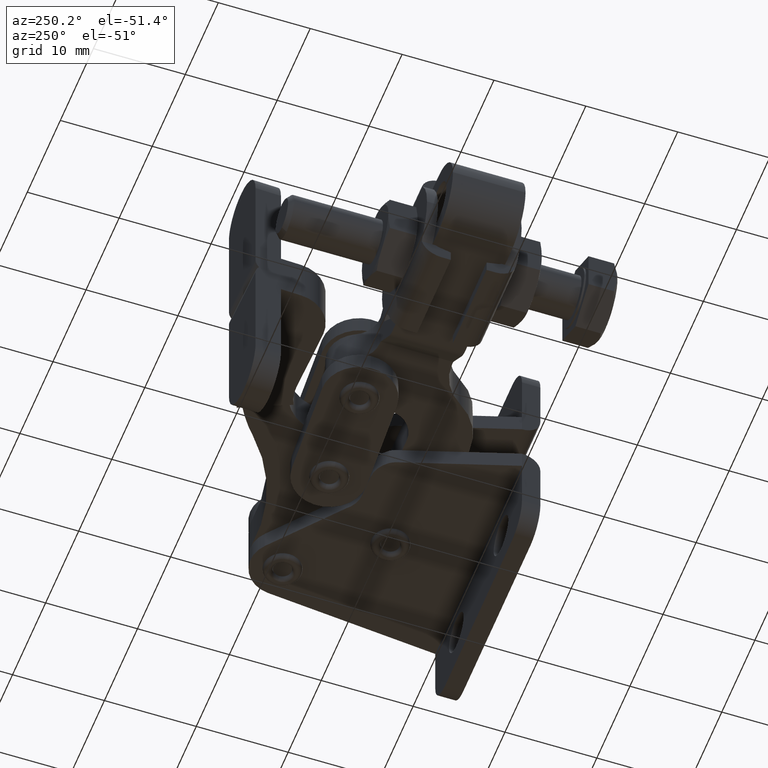
[diagram: clean part render]
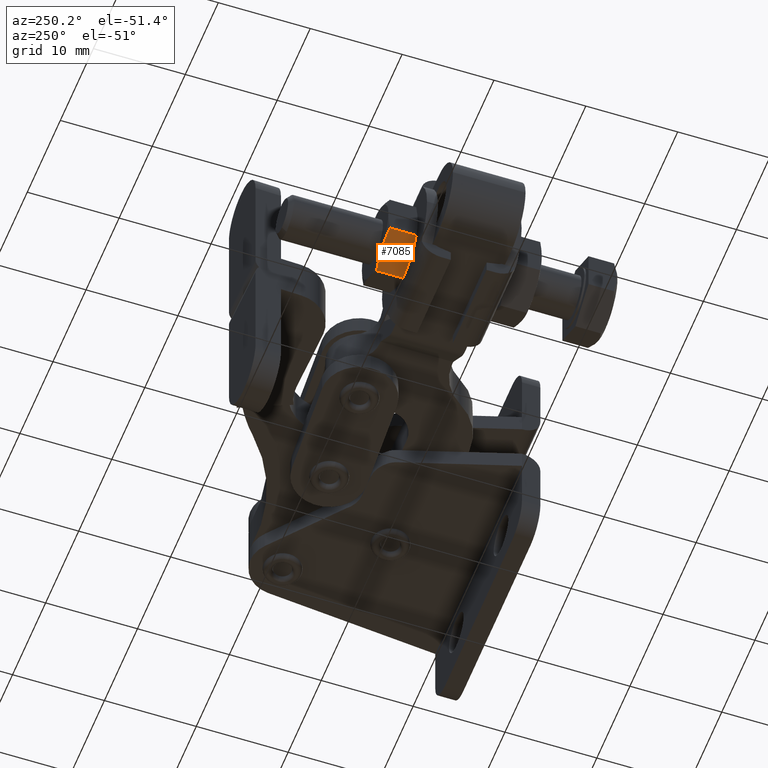
[diagram: same view with one face highlighted and labeled with its STEP entity id]
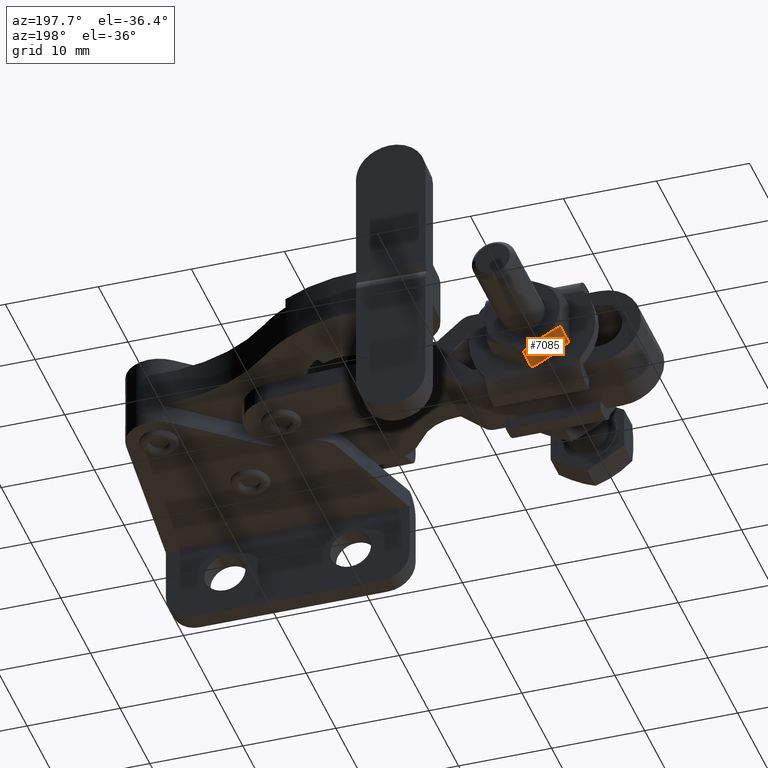
[diagram: same view with one face highlighted and labeled with its STEP entity id]
A machine part, auxiliary view. The second image highlights one B-rep face of the part: STEP entity #7085.
A second angle (auxiliary view) of the same face is appended — the face is thin or edge-on in the first view.
In plain terms, the highlighted planar face has unit normal (-0.5, 0, -0.866).
Its self-contained STEP definition (entity closure, byte-faithful):
#67 = VERTEX_POINT ( 'NONE', #2921 ) ;
#901 = EDGE_CURVE ( 'NONE', #2087, #1411, #7068, .T. ) ;
#1031 = CARTESIAN_POINT ( 'NONE',  ( -42.68164272060499100, 26.29999999999994700, -6.618802153526558200 ) ) ;
#1411 = VERTEX_POINT ( 'NONE', #6120 ) ;
#1518 = CARTESIAN_POINT ( 'NONE',  ( -44.01497605393834100, 29.49999999999995000, -5.849001794607048900 ) ) ;
#1535 = LINE ( 'NONE', #8677, #7444 ) ;
#1591 = CARTESIAN_POINT ( 'NONE',  ( -46.68164272060506200, 26.46580753730947300, -4.309401076768052600 ) ) ;
#2028 = DIRECTION ( 'NONE',  ( 0.0000000000000000000, 1.000000000000000000, 0.0000000000000000000 ) ) ;
#2087 = VERTEX_POINT ( 'NONE', #6233 ) ;
#2144 = EDGE_LOOP ( 'NONE', ( #8349, #6656, #7166, #5036, #9638, #7446 ) ) ;
#2461 = VERTEX_POINT ( 'NONE', #1591 ) ;
#2562 = CARTESIAN_POINT ( 'NONE',  ( -42.68164272060499100, 26.29999999999994700, -6.618802153526558200 ) ) ;
#2921 = CARTESIAN_POINT ( 'NONE',  ( -44.68164272060501900, 29.49999999999995000, -5.464101615147305000 ) ) ;
#3035 = B_SPLINE_CURVE_WITH_KNOTS ( 'NONE', 3,
 ( #4439, #8468, #6435, #4790 ),
 .UNSPECIFIED., .F., .F.,
 ( 4, 4 ),
 ( 2.309401076821950900E-007, 0.002309632016866246900 ),
 .UNSPECIFIED. ) ;
#3331 = DIRECTION ( 'NONE',  ( -0.8660254037844388200, 0.0000000000000000000, 0.4999999999999996700 ) ) ;
#3684 = CARTESIAN_POINT ( 'NONE',  ( -46.01497605393837600, 29.43732615494361900, -4.694301256227777900 ) ) ;
#3801 = B_SPLINE_CURVE_WITH_KNOTS ( 'NONE', 3,
 ( #6919, #1518, #8485, #3868 ),
 .UNSPECIFIED., .F., .F.,
 ( 4, 4 ),
 ( 0.002309632016866223100, 0.004619033093624749300 ),
 .UNSPECIFIED. ) ;
#3868 = CARTESIAN_POINT ( 'NONE',  ( -42.68164272060499100, 29.33419246269042400, -6.618802153526558200 ) ) ;
#4005 = EDGE_CURVE ( 'NONE', #5614, #67, #4561, .T. ) ;
#4439 = CARTESIAN_POINT ( 'NONE',  ( -46.68164272060506200, 26.46580753730947300, -4.309401076768052600 ) ) ;
#4533 = CARTESIAN_POINT ( 'NONE',  ( -46.68164272060506200, 29.33419246269042800, -4.309401076768045500 ) ) ;
#4561 = B_SPLINE_CURVE_WITH_KNOTS ( 'NONE', 3,
 ( #8024, #3684, #6385, #4870 ),
 .UNSPECIFIED., .F., .F.,
 ( 4, 4 ),
 ( 2.309401076753184500E-007, 0.002309632016866223100 ),
 .UNSPECIFIED. ) ;
#4576 = AXIS2_PLACEMENT_3D ( 'NONE', #2562, #7938, #3331 ) ;
#4790 = CARTESIAN_POINT ( 'NONE',  ( -44.68164272060499100, 26.29999999999994700, -5.464101615147305000 ) ) ;
#4842 = EDGE_CURVE ( 'NONE', #2461, #5614, #1535, .T. ) ;
#4870 = CARTESIAN_POINT ( 'NONE',  ( -44.68164272060501900, 29.49999999999995000, -5.464101615147305000 ) ) ;
#4899 = CARTESIAN_POINT ( 'NONE',  ( -42.68164272060499100, 26.46580753730947300, -6.618802153526558200 ) ) ;
#5036 = ORIENTED_EDGE ( 'NONE', *, *, #901, .F. ) ;
#5324 = B_SPLINE_CURVE_WITH_KNOTS ( 'NONE', 3,
 ( #8680, #8737, #9499, #4899 ),
 .UNSPECIFIED., .F., .F.,
 ( 4, 4 ),
 ( 0.002309632016866246900, 0.004619033093624749300 ),
 .UNSPECIFIED. ) ;
#5614 = VERTEX_POINT ( 'NONE', #4533 ) ;
#5904 = EDGE_CURVE ( 'NONE', #2461, #7640, #3035, .T. ) ;
#6120 = CARTESIAN_POINT ( 'NONE',  ( -42.68164272060499100, 29.33419246269042400, -6.618802153526558200 ) ) ;
#6233 = CARTESIAN_POINT ( 'NONE',  ( -42.68164272060499100, 26.46580753730947300, -6.618802153526558200 ) ) ;
#6385 = CARTESIAN_POINT ( 'NONE',  ( -45.34830938727169100, 29.49999999999995000, -5.079201435687537900 ) ) ;
#6435 = CARTESIAN_POINT ( 'NONE',  ( -45.34830938727167600, 26.29999999999994700, -5.079201435687545900 ) ) ;
#6656 = ORIENTED_EDGE ( 'NONE', *, *, #4005, .T. ) ;
#6919 = CARTESIAN_POINT ( 'NONE',  ( -44.68164272060501900, 29.49999999999995000, -5.464101615147305000 ) ) ;
#7068 = LINE ( 'NONE', #1031, #9993 ) ;
#7085 = ADVANCED_FACE ( 'NONE', ( #7384 ), #9442, .T. ) ;
#7166 = ORIENTED_EDGE ( 'NONE', *, *, #7417, .T. ) ;
#7285 = DIRECTION ( 'NONE',  ( 0.0000000000000000000, 1.000000000000000000, 0.0000000000000000000 ) ) ;
#7384 = FACE_OUTER_BOUND ( 'NONE', #2144, .T. ) ;
#7417 = EDGE_CURVE ( 'NONE', #67, #1411, #3801, .T. ) ;
#7444 = VECTOR ( 'NONE', #7285, 1000.000000000000000 ) ;
#7446 = ORIENTED_EDGE ( 'NONE', *, *, #5904, .F. ) ;
#7640 = VERTEX_POINT ( 'NONE', #8138 ) ;
#7938 = DIRECTION ( 'NONE',  ( -0.4999999999999996700, 0.0000000000000000000, -0.8660254037844388200 ) ) ;
#8024 = CARTESIAN_POINT ( 'NONE',  ( -46.68164272060506200, 29.33419246269042800, -4.309401076768045500 ) ) ;
#8138 = CARTESIAN_POINT ( 'NONE',  ( -44.68164272060499100, 26.29999999999994700, -5.464101615147305000 ) ) ;
#8349 = ORIENTED_EDGE ( 'NONE', *, *, #4842, .T. ) ;
#8468 = CARTESIAN_POINT ( 'NONE',  ( -46.01497605393836200, 26.36267384505627800, -4.694301256227785900 ) ) ;
#8474 = EDGE_CURVE ( 'NONE', #7640, #2087, #5324, .T. ) ;
#8485 = CARTESIAN_POINT ( 'NONE',  ( -43.34830938727166900, 29.43732615494362300, -6.233901974066803600 ) ) ;
#8677 = CARTESIAN_POINT ( 'NONE',  ( -46.68164272060506200, 26.29999999999994700, -4.309401076768045500 ) ) ;
#8680 = CARTESIAN_POINT ( 'NONE',  ( -44.68164272060499100, 26.29999999999994700, -5.464101615147305000 ) ) ;
#8737 = CARTESIAN_POINT ( 'NONE',  ( -44.01497605393832700, 26.29999999999994700, -5.849001794607057800 ) ) ;
#9442 = PLANE ( 'NONE',  #4576 ) ;
#9499 = CARTESIAN_POINT ( 'NONE',  ( -43.34830938727166200, 26.36267384505627800, -6.233901974066807100 ) ) ;
#9638 = ORIENTED_EDGE ( 'NONE', *, *, #8474, .F. ) ;
#9993 = VECTOR ( 'NONE', #2028, 1000.000000000000000 ) ;